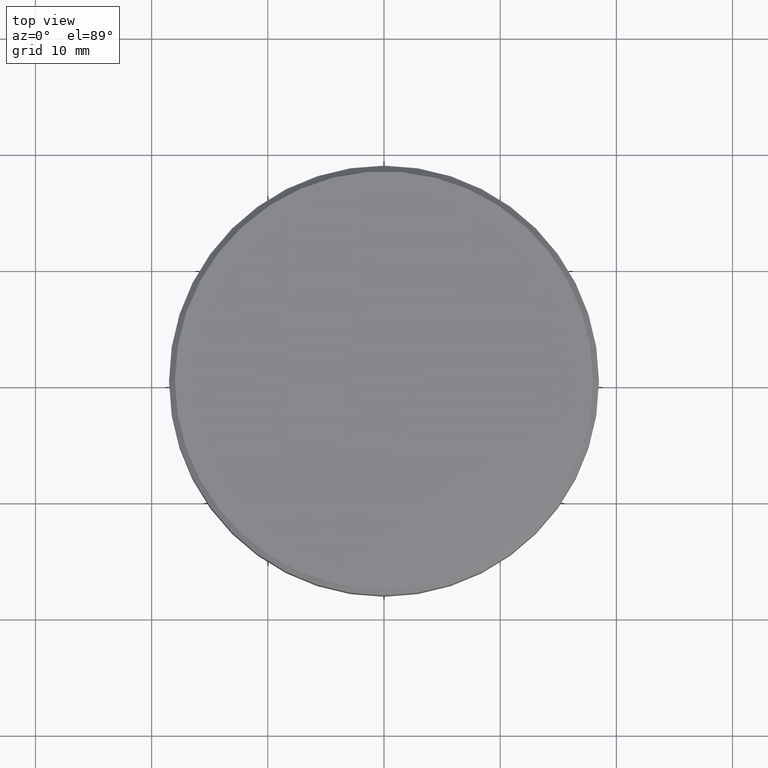
[diagram: clean part render]
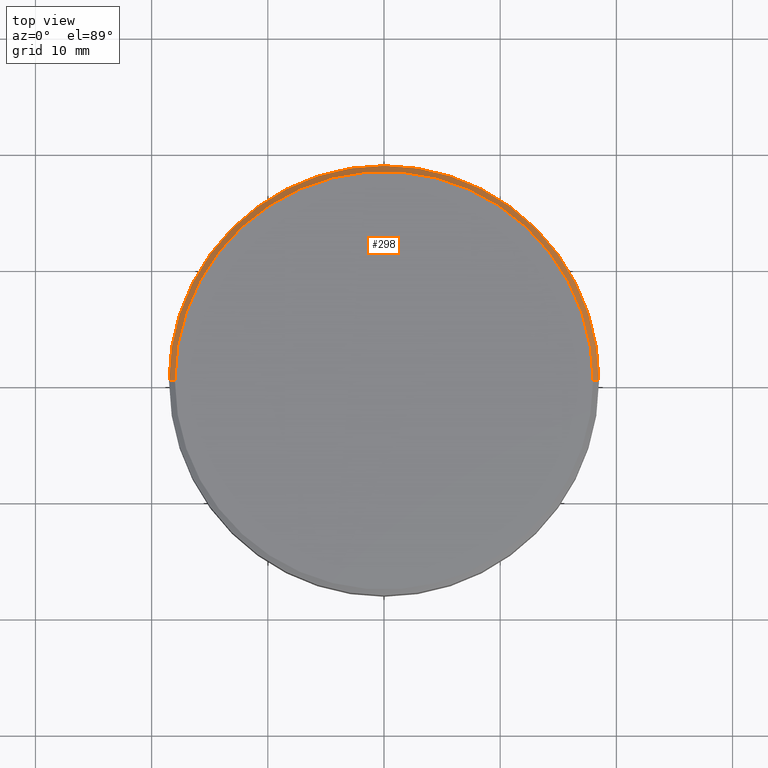
[diagram: same view with one face highlighted and labeled with its STEP entity id]
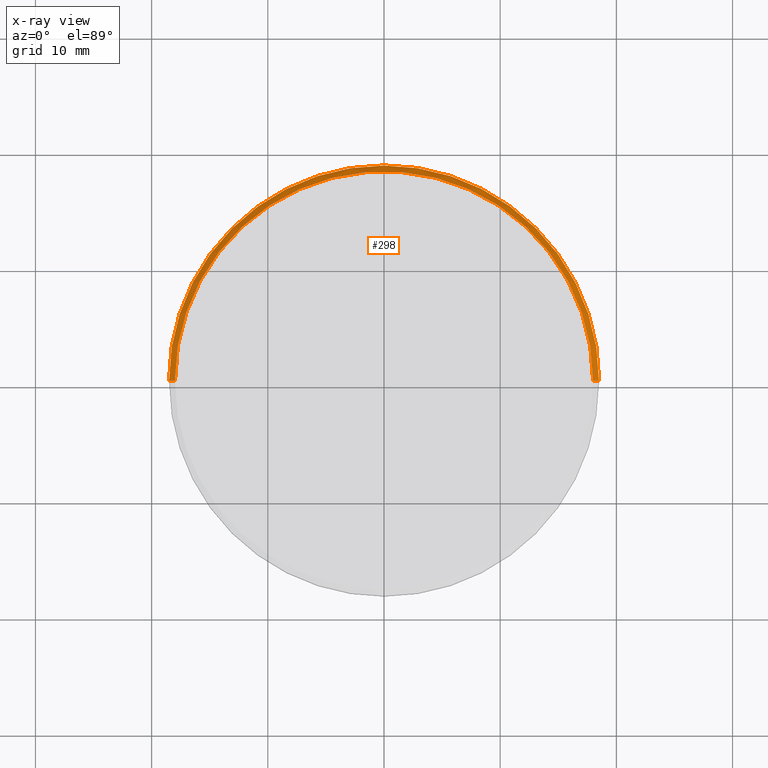
[diagram: x-ray of the same camera — body ghosted, the highlighted face saturated]
A machine part, top view. The second image highlights one B-rep face of the part: STEP entity #298.
The next image is the same camera in x-ray: the body ghosted, the highlighted face saturated — about 0% of this face is hidden behind the body in this view.
In plain terms, the highlighted conical surface has half-angle 45 deg.
Its self-contained STEP definition (entity closure, byte-faithful):
#2 = ORIENTED_EDGE ( 'NONE', *, *, #174, .T. ) ;
#3 = VERTEX_POINT ( 'NONE', #77 ) ;
#8 = CARTESIAN_POINT ( 'NONE',  ( 18.50000000000000000, 0.000000000000000000, -0.4999999999999936162 ) ) ;
#11 = DIRECTION ( 'NONE',  ( -0.7071067811865549002, 0.000000000000000000, -0.7071067811865402453 ) ) ;
#22 = DIRECTION ( 'NONE',  ( 1.000000000000000000, 0.000000000000000000, 0.000000000000000000 ) ) ;
#27 = CONICAL_SURFACE ( 'NONE', #175, 17.99999999999999645, 0.7853981633974587151 ) ;
#29 = CARTESIAN_POINT ( 'NONE',  ( -17.99999999999999645, 0.000000000000000000, 0.000000000000000000 ) ) ;
#31 = EDGE_CURVE ( 'NONE', #3, #229, #102, .T. ) ;
#58 = DIRECTION ( 'NONE',  ( 0.000000000000000000, 0.000000000000000000, -1.000000000000000000 ) ) ;
#69 = CARTESIAN_POINT ( 'NONE',  ( -17.99999999999999645, 0.000000000000000000, 0.000000000000000000 ) ) ;
#77 = CARTESIAN_POINT ( 'NONE',  ( 17.99999999999999645, 2.234980408443919215E-15, 0.000000000000000000 ) ) ;
#78 = AXIS2_PLACEMENT_3D ( 'NONE', #290, #58, #361 ) ;
#102 = CIRCLE ( 'NONE', #318, 17.99999999999999645 ) ;
#125 = DIRECTION ( 'NONE',  ( 0.7071067811865549002, 8.659560562355021605E-17, -0.7071067811865402453 ) ) ;
#126 = ORIENTED_EDGE ( 'NONE', *, *, #262, .F. ) ;
#152 = VECTOR ( 'NONE', #11, 1000.000000000000114 ) ;
#153 = ORIENTED_EDGE ( 'NONE', *, *, #162, .F. ) ;
#161 = VERTEX_POINT ( 'NONE', #379 ) ;
#162 = EDGE_CURVE ( 'NONE', #161, #387, #281, .T. ) ;
#165 = DIRECTION ( 'NONE',  ( -1.000000000000000000, 0.000000000000000000, 0.000000000000000000 ) ) ;
#173 = ORIENTED_EDGE ( 'NONE', *, *, #31, .F. ) ;
#174 = EDGE_CURVE ( 'NONE', #3, #387, #355, .T. ) ;
#175 = AXIS2_PLACEMENT_3D ( 'NONE', #367, #299, #165 ) ;
#180 = VECTOR ( 'NONE', #125, 1000.000000000000114 ) ;
#214 = DIRECTION ( 'NONE',  ( -0.000000000000000000, -0.000000000000000000, 1.000000000000000000 ) ) ;
#229 = VERTEX_POINT ( 'NONE', #29 ) ;
#231 = CARTESIAN_POINT ( 'NONE',  ( 17.99999999999999645, 2.204364238465235033E-15, 0.000000000000000000 ) ) ;
#258 = EDGE_LOOP ( 'NONE', ( #173, #2, #153, #126 ) ) ;
#262 = EDGE_CURVE ( 'NONE', #229, #161, #364, .T. ) ;
#281 = CIRCLE ( 'NONE', #78, 18.50000000000000000 ) ;
#290 = CARTESIAN_POINT ( 'NONE',  ( 0.000000000000000000, 0.000000000000000000, -0.4999999999999936162 ) ) ;
#298 = ADVANCED_FACE ( 'NONE', ( #398 ), #27, .T. ) ;
#299 = DIRECTION ( 'NONE',  ( 0.000000000000000000, 0.000000000000000000, -1.000000000000000000 ) ) ;
#318 = AXIS2_PLACEMENT_3D ( 'NONE', #401, #214, #22 ) ;
#355 = LINE ( 'NONE', #231, #180 ) ;
#361 = DIRECTION ( 'NONE',  ( 1.000000000000000000, 0.000000000000000000, 0.000000000000000000 ) ) ;
#364 = LINE ( 'NONE', #69, #152 ) ;
#367 = CARTESIAN_POINT ( 'NONE',  ( 0.000000000000000000, 0.000000000000000000, 0.000000000000000000 ) ) ;
#379 = CARTESIAN_POINT ( 'NONE',  ( -18.50000000000000000, 2.265596578422603396E-15, -0.4999999999999936162 ) ) ;
#387 = VERTEX_POINT ( 'NONE', #8 ) ;
#398 = FACE_OUTER_BOUND ( 'NONE', #258, .T. ) ;
#401 = CARTESIAN_POINT ( 'NONE',  ( 0.000000000000000000, 0.000000000000000000, 0.000000000000000000 ) ) ;